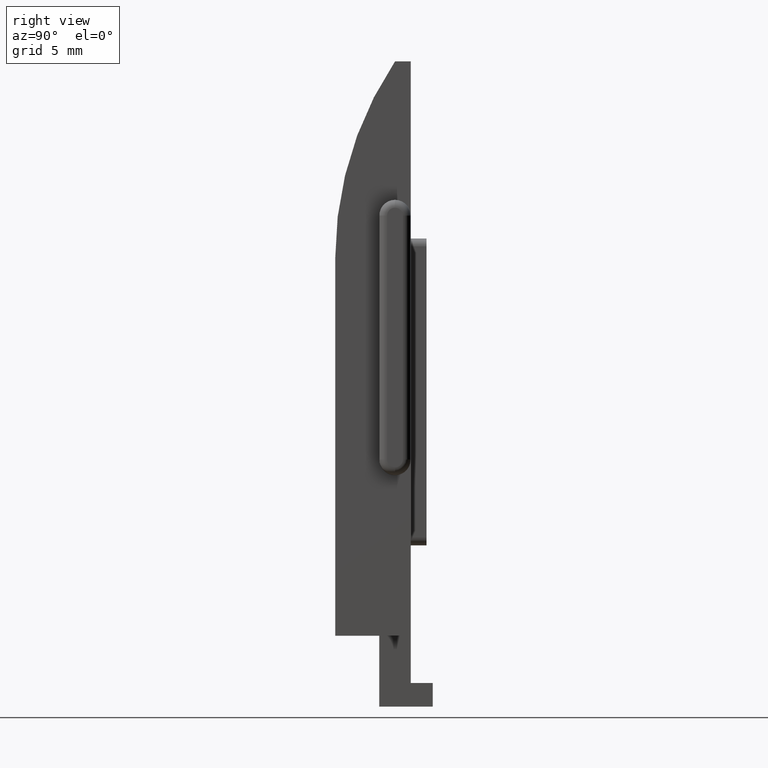
[diagram: clean part render]
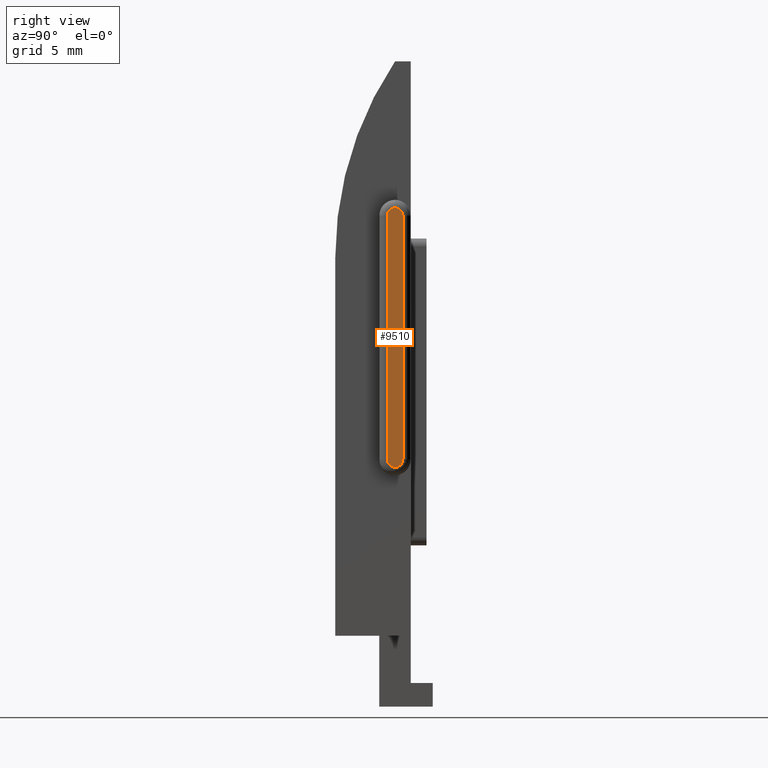
[diagram: same view with one face highlighted and labeled with its STEP entity id]
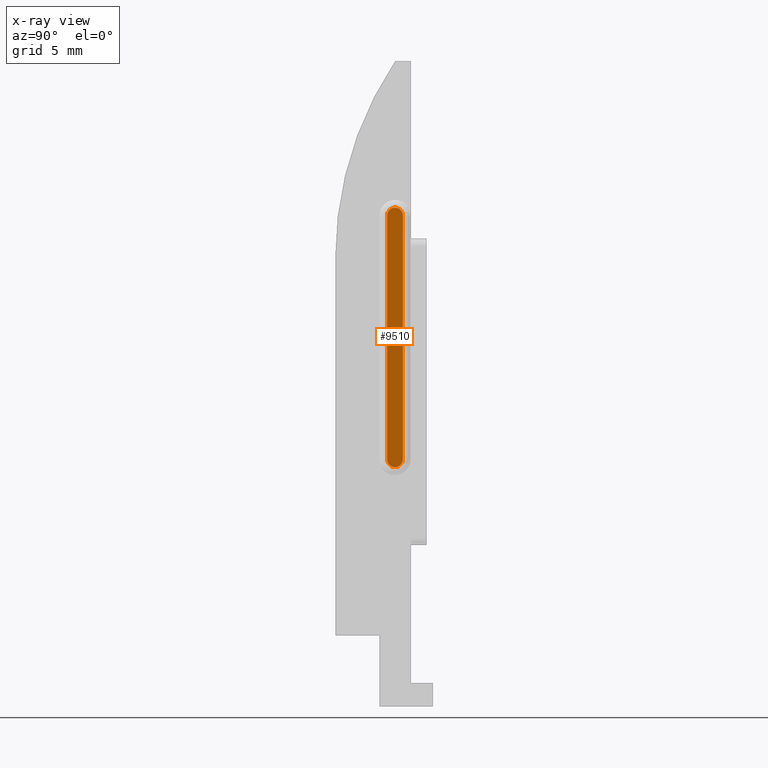
[diagram: x-ray of the same camera — body ghosted, the highlighted face saturated]
A machine part, right view. The second image highlights one B-rep face of the part: STEP entity #9510.
The next image is the same camera in x-ray: the body ghosted, the highlighted face saturated — about 0% of this face is hidden behind the body in this view.
In plain terms, the highlighted planar face has unit normal (1, 0, 0).
Its self-contained STEP definition (entity closure, byte-faithful):
#251 = EDGE_CURVE ( 'NONE', #6700, #5300, #7141, .T. ) ;
#589 = ORIENTED_EDGE ( 'NONE', *, *, #8116, .T. ) ;
#696 = ORIENTED_EDGE ( 'NONE', *, *, #8707, .T. ) ;
#859 = DIRECTION ( 'NONE',  ( 0.0000000000000000000, 0.0000000000000000000, -1.000000000000000000 ) ) ;
#1132 = AXIS2_PLACEMENT_3D ( 'NONE', #6826, #5284, #9337 ) ;
#1165 = DIRECTION ( 'NONE',  ( 0.0000000000000000000, 0.0000000000000000000, -1.000000000000000000 ) ) ;
#1788 = CARTESIAN_POINT ( 'NONE',  ( 10.50000000000000000, 3.799999999999999400, 11.21000000000000100 ) ) ;
#1925 = DIRECTION ( 'NONE',  ( 0.0000000000000000000, 1.119176436114069100E-016, -1.000000000000000000 ) ) ;
#1938 = CARTESIAN_POINT ( 'NONE',  ( 10.50000000000000000, 3.799999999999999400, 11.21000000000000100 ) ) ;
#2201 = CARTESIAN_POINT ( 'NONE',  ( 10.50000000000000000, 3.799999999999999400, 27.21000000000000100 ) ) ;
#2341 = DIRECTION ( 'NONE',  ( 1.000000000000000000, 0.0000000000000000000, 0.0000000000000000000 ) ) ;
#2845 = ORIENTED_EDGE ( 'NONE', *, *, #251, .T. ) ;
#3257 = CIRCLE ( 'NONE', #9000, 0.4999999999999970000 ) ;
#3775 = CARTESIAN_POINT ( 'NONE',  ( 10.50000000000000000, 3.300000000000000300, 26.71000000000000100 ) ) ;
#3864 = CARTESIAN_POINT ( 'NONE',  ( 10.50000000000000000, 4.299999999999996300, 26.71000000000000100 ) ) ;
#3923 = ORIENTED_EDGE ( 'NONE', *, *, #8295, .T. ) ;
#4023 = CIRCLE ( 'NONE', #1132, 0.5000000000000004400 ) ;
#4275 = VECTOR ( 'NONE', #9656, 1000.000000000000000 ) ;
#4323 = DIRECTION ( 'NONE',  ( 1.000000000000000000, 0.0000000000000000000, 0.0000000000000000000 ) ) ;
#4338 = AXIS2_PLACEMENT_3D ( 'NONE', #1788, #4323, #8499 ) ;
#4352 = CARTESIAN_POINT ( 'NONE',  ( 10.50000000000000000, 3.300000000000002000, 11.21000000000000100 ) ) ;
#4569 = VERTEX_POINT ( 'NONE', #9375 ) ;
#4789 = LINE ( 'NONE', #3864, #4275 ) ;
#4813 = CARTESIAN_POINT ( 'NONE',  ( 10.50000000000000000, 3.799999999999999400, 26.71000000000000100 ) ) ;
#4925 = DIRECTION ( 'NONE',  ( 1.000000000000000000, 0.0000000000000000000, 0.0000000000000000000 ) ) ;
#5153 = CARTESIAN_POINT ( 'NONE',  ( 10.50000000000000000, 4.299999999999996300, 11.21000000000000100 ) ) ;
#5284 = DIRECTION ( 'NONE',  ( 1.000000000000000000, 0.0000000000000000000, 0.0000000000000000000 ) ) ;
#5300 = VERTEX_POINT ( 'NONE', #5559 ) ;
#5470 = VERTEX_POINT ( 'NONE', #2201 ) ;
#5559 = CARTESIAN_POINT ( 'NONE',  ( 10.50000000000000000, 3.300000000000002000, 11.21000000000000100 ) ) ;
#5618 = DIRECTION ( 'NONE',  ( 0.0000000000000000000, 0.0000000000000000000, -1.000000000000000000 ) ) ;
#5870 = VERTEX_POINT ( 'NONE', #9741 ) ;
#6038 = DIRECTION ( 'NONE',  ( 1.000000000000000000, 0.0000000000000000000, 0.0000000000000000000 ) ) ;
#6041 = AXIS2_PLACEMENT_3D ( 'NONE', #4813, #2341, #5618 ) ;
#6143 = ORIENTED_EDGE ( 'NONE', *, *, #8079, .T. ) ;
#6638 = PLANE ( 'NONE',  #8192 ) ;
#6700 = VERTEX_POINT ( 'NONE', #3775 ) ;
#6826 = CARTESIAN_POINT ( 'NONE',  ( 10.50000000000000000, 3.799999999999999400, 26.71000000000000100 ) ) ;
#7141 = LINE ( 'NONE', #4352, #8571 ) ;
#7278 = ORIENTED_EDGE ( 'NONE', *, *, #9860, .T. ) ;
#8079 = EDGE_CURVE ( 'NONE', #5870, #5470, #4023, .T. ) ;
#8116 = EDGE_CURVE ( 'NONE', #5300, #4569, #3257, .T. ) ;
#8192 = AXIS2_PLACEMENT_3D ( 'NONE', #8306, #4925, #859 ) ;
#8295 = EDGE_CURVE ( 'NONE', #5470, #6700, #9895, .T. ) ;
#8306 = CARTESIAN_POINT ( 'NONE',  ( 10.50000000000000000, 3.799999999999999400, 26.71000000000000100 ) ) ;
#8499 = DIRECTION ( 'NONE',  ( 0.0000000000000000000, 0.0000000000000000000, -1.000000000000000000 ) ) ;
#8571 = VECTOR ( 'NONE', #1925, 1000.000000000000000 ) ;
#8707 = EDGE_CURVE ( 'NONE', #9898, #5870, #4789, .T. ) ;
#8855 = CIRCLE ( 'NONE', #4338, 0.4999999999999970000 ) ;
#9000 = AXIS2_PLACEMENT_3D ( 'NONE', #1938, #6038, #1165 ) ;
#9337 = DIRECTION ( 'NONE',  ( 0.0000000000000000000, 0.0000000000000000000, -1.000000000000000000 ) ) ;
#9375 = CARTESIAN_POINT ( 'NONE',  ( 10.50000000000000000, 3.799999999999999400, 10.71000000000000400 ) ) ;
#9510 = ADVANCED_FACE ( 'NONE', ( #10360 ), #6638, .T. ) ;
#9656 = DIRECTION ( 'NONE',  ( 0.0000000000000000000, -1.317178037947461600E-016, 1.000000000000000000 ) ) ;
#9741 = CARTESIAN_POINT ( 'NONE',  ( 10.50000000000000000, 4.299999999999998000, 26.71000000000000100 ) ) ;
#9860 = EDGE_CURVE ( 'NONE', #4569, #9898, #8855, .T. ) ;
#9895 = CIRCLE ( 'NONE', #6041, 0.5000000000000004400 ) ;
#9898 = VERTEX_POINT ( 'NONE', #5153 ) ;
#10248 = EDGE_LOOP ( 'NONE', ( #589, #7278, #696, #6143, #3923, #2845 ) ) ;
#10360 = FACE_OUTER_BOUND ( 'NONE', #10248, .T. ) ;